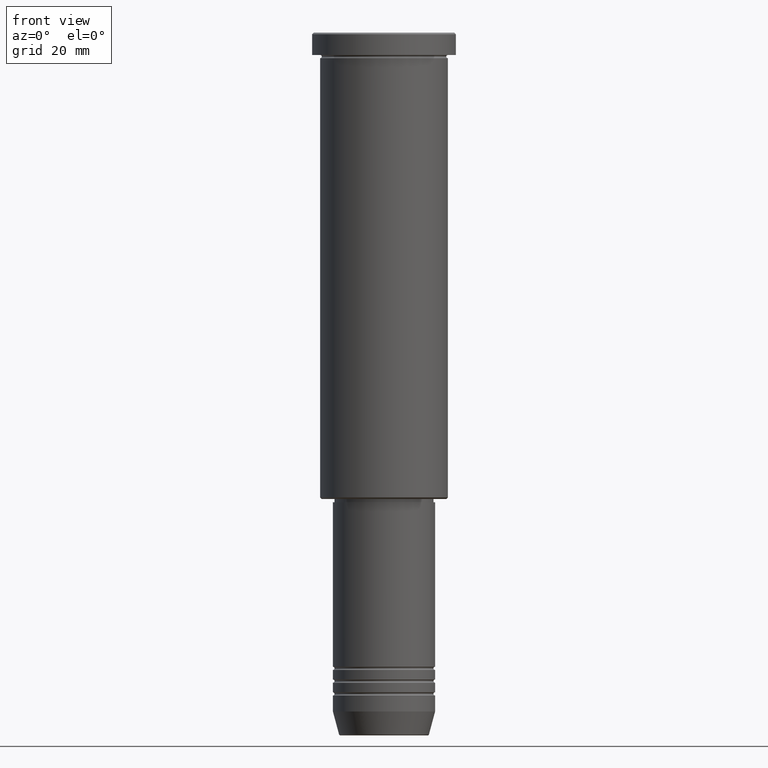
[diagram: clean part render]
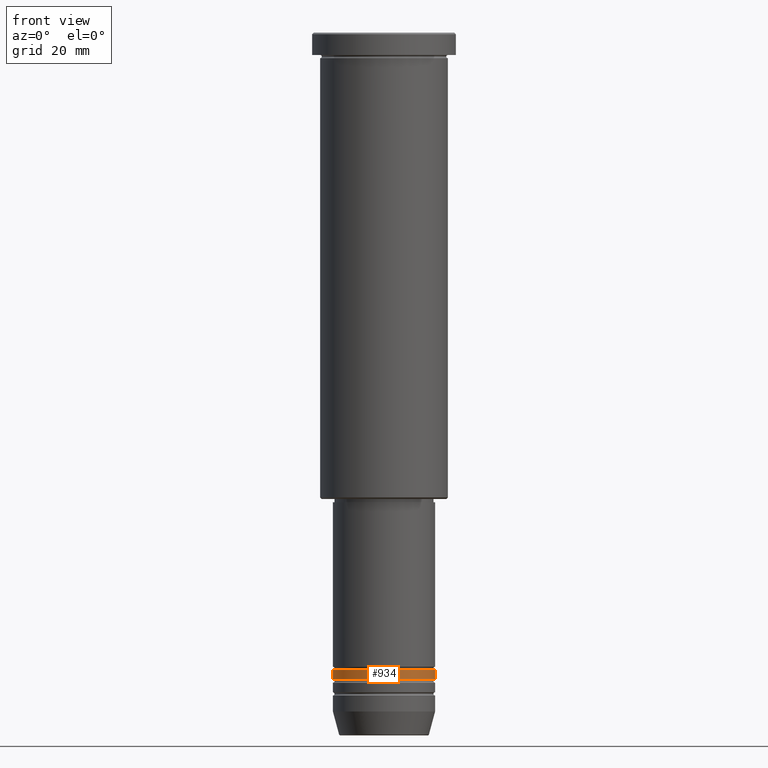
[diagram: same view with one face highlighted and labeled with its STEP entity id]
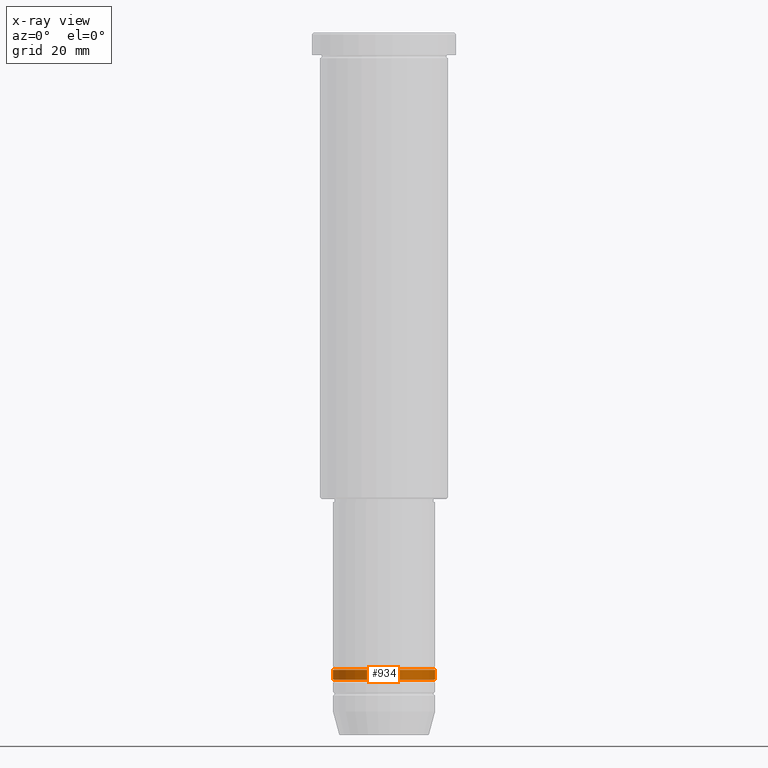
[diagram: x-ray of the same camera — body ghosted, the highlighted face saturated]
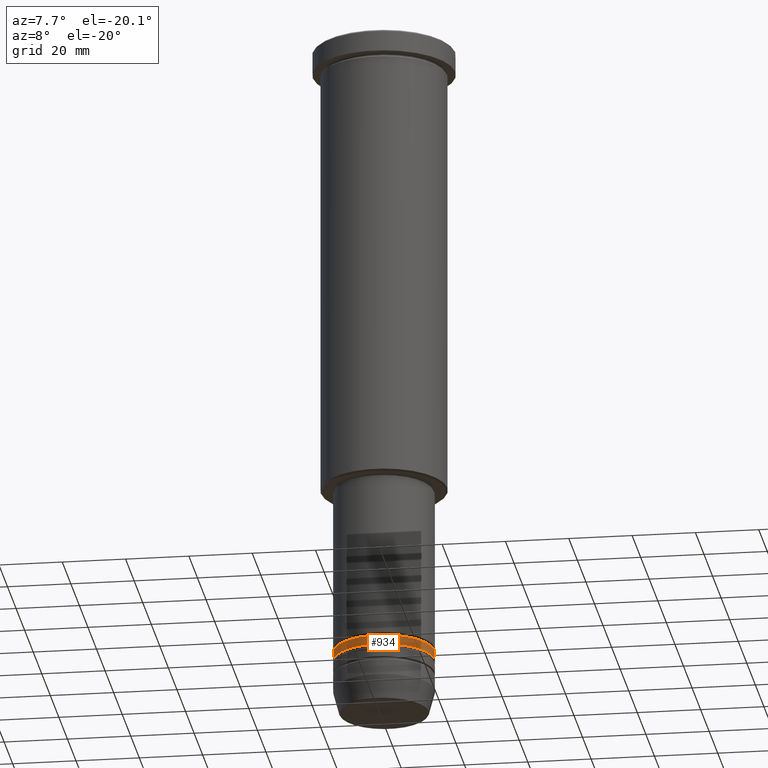
[diagram: same view with one face highlighted and labeled with its STEP entity id]
A machine part, front view. The second image highlights one B-rep face of the part: STEP entity #934.
The next image is the same camera in x-ray: the body ghosted, the highlighted face saturated — about 0% of this face is hidden behind the body in this view.
A second angle (auxiliary view) of the same face is appended — the face is thin or edge-on in the first view.
In plain terms, the highlighted cylindrical surface (partial cylindrical patch) has radius 16 mm, axis along (-0, -0, 1).
Its self-contained STEP definition (entity closure, byte-faithful):
#26 = CARTESIAN_POINT ( 'NONE',  ( 0.000000000000000000, 0.000000000000000000, 0.000000000000000000 ) ) ;
#38 = CARTESIAN_POINT ( 'NONE',  ( 16.00000000000000355, 0.000000000000000000, -202.4999999999999716 ) ) ;
#40 = DIRECTION ( 'NONE',  ( -0.000000000000000000, -0.000000000000000000, 1.000000000000000000 ) ) ;
#61 = DIRECTION ( 'NONE',  ( 1.000000000000000000, 0.000000000000000000, 0.000000000000000000 ) ) ;
#149 = LINE ( 'NONE', #961, #534 ) ;
#183 = CARTESIAN_POINT ( 'NONE',  ( -16.00000000000000355, 1.959434878635765526E-15, -202.4999999999999716 ) ) ;
#193 = ORIENTED_EDGE ( 'NONE', *, *, #599, .F. ) ;
#230 = EDGE_CURVE ( 'NONE', #919, #883, #856, .T. ) ;
#303 = DIRECTION ( 'NONE',  ( 1.000000000000000000, 0.000000000000000000, 0.000000000000000000 ) ) ;
#351 = DIRECTION ( 'NONE',  ( 1.000000000000000000, 0.000000000000000000, 0.000000000000000000 ) ) ;
#375 = CIRCLE ( 'NONE', #931, 16.00000000000000355 ) ;
#427 = CARTESIAN_POINT ( 'NONE',  ( -16.00000000000000000, 1.959434878635765131E-15, 0.000000000000000000 ) ) ;
#451 = DIRECTION ( 'NONE',  ( -0.000000000000000000, -0.000000000000000000, 1.000000000000000000 ) ) ;
#465 = ORIENTED_EDGE ( 'NONE', *, *, #1138, .T. ) ;
#495 = CARTESIAN_POINT ( 'NONE',  ( 16.00000000000000000, 0.000000000000000000, -199.4999999999999716 ) ) ;
#513 = VECTOR ( 'NONE', #788, 1000.000000000000000 ) ;
#519 = CARTESIAN_POINT ( 'NONE',  ( 0.000000000000000000, 0.000000000000000000, -202.4999999999999716 ) ) ;
#530 = DIRECTION ( 'NONE',  ( -0.000000000000000000, -0.000000000000000000, 1.000000000000000000 ) ) ;
#534 = VECTOR ( 'NONE', #530, 1000.000000000000000 ) ;
#599 = EDGE_CURVE ( 'NONE', #726, #919, #1043, .T. ) ;
#616 = ORIENTED_EDGE ( 'NONE', *, *, #230, .F. ) ;
#629 = EDGE_CURVE ( 'NONE', #726, #1099, #375, .T. ) ;
#696 = EDGE_LOOP ( 'NONE', ( #193, #943, #465, #616 ) ) ;
#726 = VERTEX_POINT ( 'NONE', #183 ) ;
#788 = DIRECTION ( 'NONE',  ( -0.000000000000000000, -0.000000000000000000, 1.000000000000000000 ) ) ;
#845 = CYLINDRICAL_SURFACE ( 'NONE', #891, 16.00000000000000000 ) ;
#856 = CIRCLE ( 'NONE', #1044, 16.00000000000000000 ) ;
#883 = VERTEX_POINT ( 'NONE', #495 ) ;
#891 = AXIS2_PLACEMENT_3D ( 'NONE', #26, #1111, #303 ) ;
#919 = VERTEX_POINT ( 'NONE', #928 ) ;
#924 = FACE_OUTER_BOUND ( 'NONE', #696, .T. ) ;
#928 = CARTESIAN_POINT ( 'NONE',  ( -16.00000000000000000, 1.959434878635765131E-15, -199.4999999999999716 ) ) ;
#931 = AXIS2_PLACEMENT_3D ( 'NONE', #519, #40, #61 ) ;
#934 = ADVANCED_FACE ( 'NONE', ( #924 ), #845, .T. ) ;
#943 = ORIENTED_EDGE ( 'NONE', *, *, #629, .T. ) ;
#961 = CARTESIAN_POINT ( 'NONE',  ( 16.00000000000000000, 0.000000000000000000, 0.000000000000000000 ) ) ;
#1043 = LINE ( 'NONE', #427, #513 ) ;
#1044 = AXIS2_PLACEMENT_3D ( 'NONE', #1148, #451, #351 ) ;
#1099 = VERTEX_POINT ( 'NONE', #38 ) ;
#1111 = DIRECTION ( 'NONE',  ( -0.000000000000000000, -0.000000000000000000, 1.000000000000000000 ) ) ;
#1138 = EDGE_CURVE ( 'NONE', #1099, #883, #149, .T. ) ;
#1148 = CARTESIAN_POINT ( 'NONE',  ( 0.000000000000000000, 0.000000000000000000, -199.4999999999999716 ) ) ;